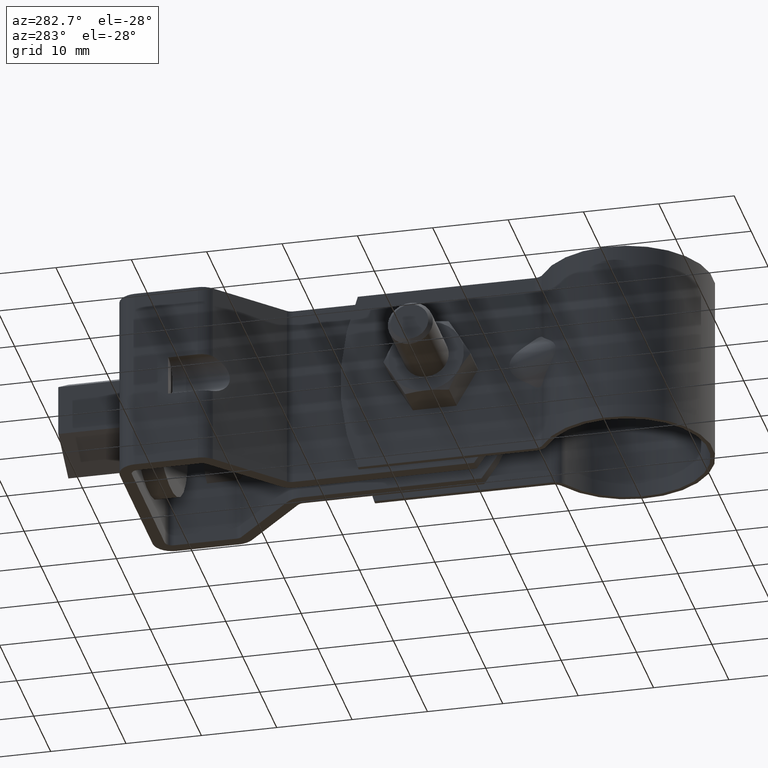
[diagram: clean part render]
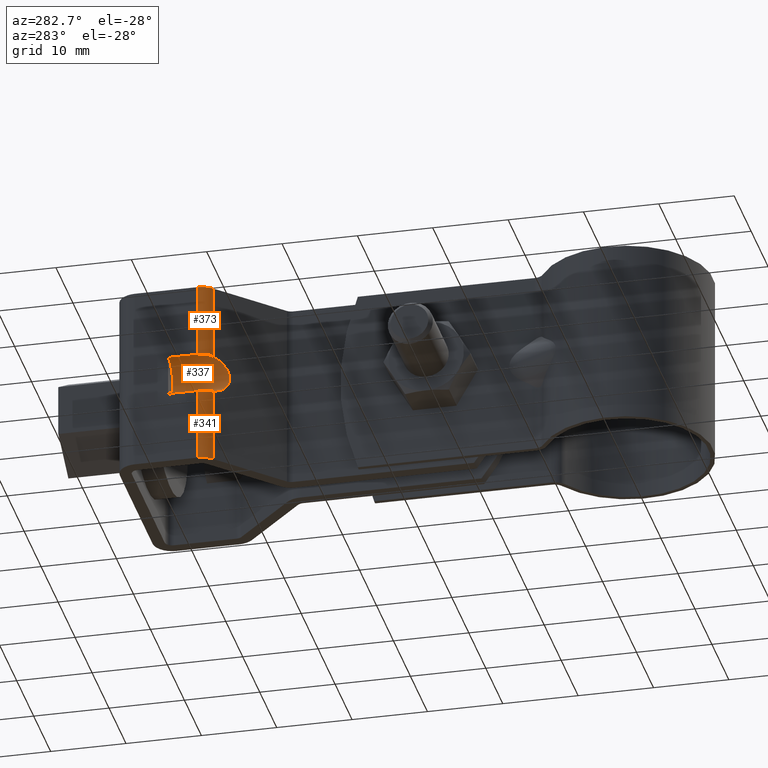
[diagram: same view with one multi-face feature highlighted, each face labeled with its STEP entity id]
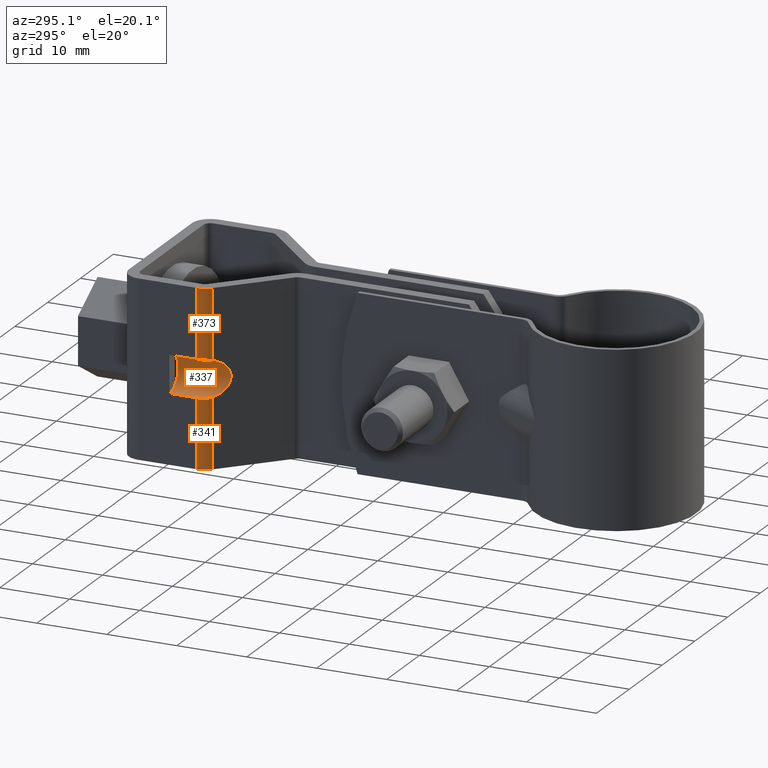
[diagram: same view with one multi-face feature highlighted, each face labeled with its STEP entity id]
A machine part, auxiliary view. The highlighted faces form ONE feature: a constant-radius fillet chain: 3 tangent blend faces with common blend radius 2.61667 mm. The faces share edges in the B-rep.
A second angle (auxiliary view) of the same feature is appended — it is thin or edge-on in the first view.
Their STEP definitions:
[1] entity #373 (Cylinder):
#373 = ADVANCED_FACE( '', ( #623 ), #624, .T. );
#623 = FACE_OUTER_BOUND( '', #895, .T. );
#624 = CYLINDRICAL_SURFACE( '', #896, 2.59999999999999 );
#895 = EDGE_LOOP( '', ( #1823, #1824, #1825, #1826 ) );
#896 = AXIS2_PLACEMENT_3D( '', #1827, #1828, #1829 );
#1823 = ORIENTED_EDGE( '', *, *, #2225, .T. );
#1824 = ORIENTED_EDGE( '', *, *, #2218, .T. );
#1825 = ORIENTED_EDGE( '', *, *, #2152, .F. );
#1826 = ORIENTED_EDGE( '', *, *, #2133, .T. );
#1827 = CARTESIAN_POINT( '', ( -9.64999999666659, 54.2186212063219, -12.4999987043417 ) );
#1828 = DIRECTION( '', ( -1.87698704392248E-011, 9.98350074832307E-009, -1.00000000000000 ) );
#1829 = DIRECTION( '', ( 1.39876277799465E-011, 1.00000000000000, 9.98350074832280E-009 ) );
#2133 = EDGE_CURVE( '', #2595, #2592, #2596, .T. );
#2152 = EDGE_CURVE( '', #2595, #2626, #2627, .T. );
#2218 = EDGE_CURVE( '', #2730, #2626, #2731, .T. );
#2225 = EDGE_CURVE( '', #2592, #2730, #2740, .T. );
#2592 = VERTEX_POINT( '', #3377 );
#2595 = VERTEX_POINT( '', #3380 );
#2596 = B_SPLINE_CURVE_WITH_KNOTS( '', 3, ( #3381, #3382, #3383, #3384, #3385, #3386, #3387, #3388, #3389, #3390 ), .UNSPECIFIED., .F., .F., ( 4, 2, 2, 2, 4 ), ( 0.000000000000000, 0.000517346174284563, 0.00103469234856913, 0.00155203852285369, 0.00206938469713825 ), .UNSPECIFIED. );
#2626 = VERTEX_POINT( '', #3447 );
#2627 = LINE( '', #3448, #3449 );
#2730 = VERTEX_POINT( '', #3619 );
#2731 = CIRCLE( '', #3620, 2.59999999999999 );
#2740 = LINE( '', #3633, #3634 );
#3377 = CARTESIAN_POINT( '', ( -11.4656419687898, 52.3575879485345, 2.53126232341100 ) );
#3380 = CARTESIAN_POINT( '', ( -12.2499999963822, 54.2186210551082, 2.65000129570708 ) );
#3381 = CARTESIAN_POINT( '', ( -12.2499999963822, 54.2186210551082, 2.65000129570708 ) );
#3382 = CARTESIAN_POINT( '', ( -12.2499999963846, 54.0437309908599, 2.65000129396107 ) );
#3383 = CARTESIAN_POINT( '', ( -12.2325330317953, 53.8717885829525, 2.65016498824892 ) );
#3384 = CARTESIAN_POINT( '', ( -12.1640563488394, 53.5335733929568, 2.64882865204402 ) );
#3385 = CARTESIAN_POINT( '', ( -12.1121297080972, 53.3654425446895, 2.64727724005148 ) );
#3386 = CARTESIAN_POINT( '', ( -11.9772119324837, 53.0464090895585, 2.63679192020757 ) );
#3387 = CARTESIAN_POINT( '', ( -11.8947254668622, 52.8953978702945, 2.62792906597273 ) );
#3388 = CARTESIAN_POINT( '', ( -11.7003962000549, 52.6106448608095, 2.59425648944388 ) );
#3389 = CARTESIAN_POINT( '', ( -11.5880224262662, 52.4769835109084, 2.56918417165766 ) );
#3390 = CARTESIAN_POINT( '', ( -11.4656419687898, 52.3575879485345, 2.53126232341100 ) );
#3447 = CARTESIAN_POINT( '', ( -12.2499999961973, 54.2186209567708, 12.5000012957071 ) );
#3448 = CARTESIAN_POINT( '', ( -12.2499999966666, 54.2186212063583, -12.4999987042929 ) );
#3449 = VECTOR( '', #4069, 1000.00000000000 );
#3619 = CARTESIAN_POINT( '', ( -11.4656419686027, 52.3575878490117, 12.5000012771128 ) );
#3620 = AXIS2_PLACEMENT_3D( '', #4171, #4172, #4173 );
#3633 = CARTESIAN_POINT( '', ( -11.4656419690719, 52.3575880985992, -12.4999987228872 ) );
#3634 = VECTOR( '', #4184, 1000.00000000000 );
#4069 = DIRECTION( '', ( 1.87698704392248E-011, -9.98350074832307E-009, 1.00000000000000 ) );
#4171 = CARTESIAN_POINT( '', ( -9.64999999619735, 54.2186209567344, 12.5000012956583 ) );
#4172 = DIRECTION( '', ( -1.87698704392238E-011, 9.98350074832307E-009, -1.00000000000000 ) );
#4173 = DIRECTION( '', ( -0.698323835540512, -0.715781964508738, -7.13290233039142E-009 ) );
#4184 = DIRECTION( '', ( 1.87698704392248E-011, -9.98350074832307E-009, 1.00000000000000 ) );
[2] entity #337 (Cylinder):
#337 = ADVANCED_FACE( '', ( #545 ), #546, .F. );
#545 = FACE_OUTER_BOUND( '', #817, .T. );
#546 = CYLINDRICAL_SURFACE( '', #818, 2.64999999999997 );
#817 = EDGE_LOOP( '', ( #1507, #1508, #1509, #1510, #1511, #1512, #1513, #1514 ) );
#818 = AXIS2_PLACEMENT_3D( '', #1515, #1516, #1517 );
#1507 = ORIENTED_EDGE( '', *, *, #2132, .F. );
#1508 = ORIENTED_EDGE( '', *, *, #2133, .F. );
#1509 = ORIENTED_EDGE( '', *, *, #2134, .T. );
#1510 = ORIENTED_EDGE( '', *, *, #2135, .T. );
#1511 = ORIENTED_EDGE( '', *, *, #2136, .T. );
#1512 = ORIENTED_EDGE( '', *, *, #2137, .T. );
#1513 = ORIENTED_EDGE( '', *, *, #2138, .F. );
#1514 = ORIENTED_EDGE( '', *, *, #2139, .F. );
#1515 = CARTESIAN_POINT( '', ( -12.2499999965172, 48.1228152824501, 1.23484962533116E-006 ) );
#1516 = DIRECTION( '', ( -1.39876277799465E-011, -1.00000000000000, -9.98350074832281E-009 ) );
#1517 = DIRECTION( '', ( -1.87488145554088E-011, 9.98350074832307E-009, -1.00000000000000 ) );
#2132 = EDGE_CURVE( '', #2592, #2593, #2594, .T. );
#2133 = EDGE_CURVE( '', #2595, #2592, #2596, .T. );
#2134 = EDGE_CURVE( '', #2595, #2597, #2598, .T. );
#2135 = EDGE_CURVE( '', #2597, #2599, #2600, .T. );
#2136 = EDGE_CURVE( '', #2599, #2601, #2602, .T. );
#2137 = EDGE_CURVE( '', #2601, #2603, #2604, .T. );
#2138 = EDGE_CURVE( '', #2605, #2603, #2606, .T. );
#2139 = EDGE_CURVE( '', #2593, #2605, #2607, .T. );
#2592 = VERTEX_POINT( '', #3377 );
#2593 = VERTEX_POINT( '', #3378 );
#2594 = ELLIPSE( '', #3379, 3.70224472166266, 2.64999999999997 );
#2595 = VERTEX_POINT( '', #3380 );
#2596 = B_SPLINE_CURVE_WITH_KNOTS( '', 3, ( #3381, #3382, #3383, #3384, #3385, #3386, #3387, #3388, #3389, #3390 ), .UNSPECIFIED., .F., .F., ( 4, 2, 2, 2, 4 ), ( 0.000000000000000, 0.000517346174284563, 0.00103469234856913, 0.00155203852285369, 0.00206938469713825 ), .UNSPECIFIED. );
#2597 = VERTEX_POINT( '', #3391 );
#2598 = LINE( '', #3392, #3393 );
#2599 = VERTEX_POINT( '', #3394 );
#2600 = CIRCLE( '', #3395, 2.64999999999997 );
#2601 = VERTEX_POINT( '', #3396 );
#2602 = CIRCLE( '', #3397, 2.64999999999997 );
#2603 = VERTEX_POINT( '', #3398 );
#2604 = CIRCLE( '', #3399, 2.64999999999997 );
#2605 = VERTEX_POINT( '', #3400 );
#2606 = LINE( '', #3401, #3402 );
#2607 = B_SPLINE_CURVE_WITH_KNOTS( '', 3, ( #3403, #3404, #3405, #3406, #3407, #3408, #3409, #3410 ), .UNSPECIFIED., .F., .F., ( 4, 2, 2, 4 ), ( 1.73472347597678E-018, 0.000516787748161299, 0.00103357549632260, 0.00206715099264519 ), .UNSPECIFIED. );
#3377 = CARTESIAN_POINT( '', ( -11.4656419687898, 52.3575879485345, 2.53126232341100 ) );
#3378 = CARTESIAN_POINT( '', ( -11.4656419688848, 52.3575879990762, -2.53125976918547 ) );
#3379 = AXIS2_PLACEMENT_3D( '', #4041, #4042, #4043 );
#3380 = CARTESIAN_POINT( '', ( -12.2499999963822, 54.2186210551082, 2.65000129570708 ) );
#3381 = CARTESIAN_POINT( '', ( -12.2499999963822, 54.2186210551082, 2.65000129570708 ) );
#3382 = CARTESIAN_POINT( '', ( -12.2499999963846, 54.0437309908599, 2.65000129396107 ) );
#3383 = CARTESIAN_POINT( '', ( -12.2325330317953, 53.8717885829525, 2.65016498824892 ) );
#3384 = CARTESIAN_POINT( '', ( -12.1640563488394, 53.5335733929568, 2.64882865204402 ) );
#3385 = CARTESIAN_POINT( '', ( -12.1121297080972, 53.3654425446895, 2.64727724005148 ) );
#3386 = CARTESIAN_POINT( '', ( -11.9772119324837, 53.0464090895585, 2.63679192020757 ) );
#3387 = CARTESIAN_POINT( '', ( -11.8947254668622, 52.8953978702945, 2.62792906597273 ) );
#3388 = CARTESIAN_POINT( '', ( -11.7003962000549, 52.6106448608095, 2.59425648944388 ) );
#3389 = CARTESIAN_POINT( '', ( -11.5880224262662, 52.4769835109084, 2.56918417165766 ) );
#3390 = CARTESIAN_POINT( '', ( -11.4656419687898, 52.3575879485345, 2.53126232341100 ) );
#3391 = CARTESIAN_POINT( '', ( -12.2499999963276, 58.1228152559938, 2.65000133468461 ) );
#3392 = CARTESIAN_POINT( '', ( -12.2499999964675, 48.1228152559938, 2.65000123484960 ) );
#3393 = VECTOR( '', #4044, 1000.00000000000 );
#3394 = CARTESIAN_POINT( '', ( -10.6499999963377, 58.1228152613380, 2.11246435208237 ) );
#3395 = AXIS2_PLACEMENT_3D( '', #4045, #4046, #4047 );
#3396 = CARTESIAN_POINT( '', ( -10.6499999964170, 58.1228153035175, -2.11246168277315 ) );
#3397 = AXIS2_PLACEMENT_3D( '', #4048, #4049, #4050 );
#3398 = CARTESIAN_POINT( '', ( -12.2499999964271, 58.1228153089064, -2.64999866531533 ) );
#3399 = AXIS2_PLACEMENT_3D( '', #4051, #4052, #4053 );
#3400 = CARTESIAN_POINT( '', ( -12.2499999964817, 54.2186211080207, -2.64999870429286 ) );
#3401 = CARTESIAN_POINT( '', ( -12.2499999965670, 48.1228153089064, -2.64999876515035 ) );
#3402 = VECTOR( '', #4054, 1000.00000000000 );
#3403 = CARTESIAN_POINT( '', ( -11.4656419688848, 52.3575879990762, -2.53125976918549 ) );
#3404 = CARTESIAN_POINT( '', ( -11.5880007559355, 52.4769624203282, -2.56917490006137 ) );
#3405 = CARTESIAN_POINT( '', ( -11.6979909690847, 52.6076613859442, -2.59373739019618 ) );
#3406 = CARTESIAN_POINT( '', ( -11.8919852965434, 52.8908560071498, -2.62754885565621 ) );
#3407 = CARTESIAN_POINT( '', ( -11.9765770422437, 53.0451812057756, -2.63672398389602 ) );
#3408 = CARTESIAN_POINT( '', ( -12.1789955990033, 53.5230141377761, -2.65250307058674 ) );
#3409 = CARTESIAN_POINT( '', ( -12.2499999964866, 53.8690792659735, -2.64999870778251 ) );
#3410 = CARTESIAN_POINT( '', ( -12.2499999964817, 54.2186211080207, -2.64999870429286 ) );
#4041 = CARTESIAN_POINT( '', ( -12.2499999964472, 53.1228152824503, 1.28476712601966E-006 ) );
#4042 = DIRECTION( '', ( 0.698323835540509, 0.715781964508740, 7.13290236549389E-009 ) );
#4043 = DIRECTION( '', ( -0.715781964508740, 0.698323835540509, 6.98515163344706E-009 ) );
#4044 = DIRECTION( '', ( 1.39876277799465E-011, 1.00000000000000, 9.98350074832280E-009 ) );
#4045 = CARTESIAN_POINT( '', ( -12.2499999963773, 58.1228152824501, 1.33468464058595E-006 ) );
#4046 = DIRECTION( '', ( 1.39876277799465E-011, 1.00000000000000, 9.98350074832280E-009 ) );
#4047 = DIRECTION( '', ( -1.87704167722794E-011, 9.98350074832306E-009, -1.00000000000000 ) );
#4048 = CARTESIAN_POINT( '', ( -12.2499999963773, 58.1228152824501, 1.33468464058595E-006 ) );
#4049 = DIRECTION( '', ( 1.39876277799465E-011, 1.00000000000000, 9.98350074832280E-009 ) );
#4050 = DIRECTION( '', ( -1.87704167722794E-011, 9.98350074832306E-009, -1.00000000000000 ) );
#4051 = CARTESIAN_POINT( '', ( -12.2499999963773, 58.1228152824501, 1.33468464058595E-006 ) );
#4052 = DIRECTION( '', ( 1.39876277799465E-011, 1.00000000000000, 9.98350074832280E-009 ) );
#4053 = DIRECTION( '', ( -1.87704167722794E-011, 9.98350074832306E-009, -1.00000000000000 ) );
#4054 = DIRECTION( '', ( 1.39876277799465E-011, 1.00000000000000, 9.98350074832280E-009 ) );
[3] entity #341 (Cylinder):
#341 = ADVANCED_FACE( '', ( #553 ), #554, .T. );
#553 = FACE_OUTER_BOUND( '', #825, .T. );
#554 = CYLINDRICAL_SURFACE( '', #826, 2.59999999999999 );
#825 = EDGE_LOOP( '', ( #1541, #1542, #1543, #1544 ) );
#826 = AXIS2_PLACEMENT_3D( '', #1545, #1546, #1547 );
#1541 = ORIENTED_EDGE( '', *, *, #2150, .F. );
#1542 = ORIENTED_EDGE( '', *, *, #2112, .F. );
#1543 = ORIENTED_EDGE( '', *, *, #2151, .T. );
#1544 = ORIENTED_EDGE( '', *, *, #2139, .T. );
#1545 = CARTESIAN_POINT( '', ( -9.64999999666659, 54.2186212063219, -12.4999987043417 ) );
#1546 = DIRECTION( '', ( -1.87698704392248E-011, 9.98350074832307E-009, -1.00000000000000 ) );
#1547 = DIRECTION( '', ( 1.39876277799465E-011, 1.00000000000000, 9.98350074832280E-009 ) );
#2112 = EDGE_CURVE( '', #2554, #2556, #2557, .T. );
#2139 = EDGE_CURVE( '', #2593, #2605, #2607, .T. );
#2150 = EDGE_CURVE( '', #2556, #2605, #2624, .T. );
#2151 = EDGE_CURVE( '', #2554, #2593, #2625, .T. );
#2554 = VERTEX_POINT( '', #3327 );
#2556 = VERTEX_POINT( '', #3330 );
#2557 = CIRCLE( '', #3331, 2.59999999999999 );
#2593 = VERTEX_POINT( '', #3378 );
#2605 = VERTEX_POINT( '', #3400 );
#2607 = B_SPLINE_CURVE_WITH_KNOTS( '', 3, ( #3403, #3404, #3405, #3406, #3407, #3408, #3409, #3410 ), .UNSPECIFIED., .F., .F., ( 4, 2, 2, 4 ), ( 1.73472347597678E-018, 0.000516787748161299, 0.00103357549632260, 0.00206715099264519 ), .UNSPECIFIED. );
#2624 = LINE( '', #3443, #3444 );
#2625 = LINE( '', #3445, #3446 );
#3327 = CARTESIAN_POINT( '', ( -11.4656419690719, 52.3575880985992, -12.4999987228872 ) );
#3330 = CARTESIAN_POINT( '', ( -12.2499999966666, 54.2186212063583, -12.4999987042929 ) );
#3331 = AXIS2_PLACEMENT_3D( '', #4003, #4004, #4005 );
#3378 = CARTESIAN_POINT( '', ( -11.4656419688848, 52.3575879990762, -2.53125976918547 ) );
#3400 = CARTESIAN_POINT( '', ( -12.2499999964817, 54.2186211080207, -2.64999870429286 ) );
#3403 = CARTESIAN_POINT( '', ( -11.4656419688848, 52.3575879990762, -2.53125976918549 ) );
#3404 = CARTESIAN_POINT( '', ( -11.5880007559355, 52.4769624203282, -2.56917490006137 ) );
#3405 = CARTESIAN_POINT( '', ( -11.6979909690847, 52.6076613859442, -2.59373739019618 ) );
#3406 = CARTESIAN_POINT( '', ( -11.8919852965434, 52.8908560071498, -2.62754885565621 ) );
#3407 = CARTESIAN_POINT( '', ( -11.9765770422437, 53.0451812057756, -2.63672398389602 ) );
#3408 = CARTESIAN_POINT( '', ( -12.1789955990033, 53.5230141377761, -2.65250307058674 ) );
#3409 = CARTESIAN_POINT( '', ( -12.2499999964866, 53.8690792659735, -2.64999870778251 ) );
#3410 = CARTESIAN_POINT( '', ( -12.2499999964817, 54.2186211080207, -2.64999870429286 ) );
#3443 = CARTESIAN_POINT( '', ( -12.2499999966666, 54.2186212063583, -12.4999987042929 ) );
#3444 = VECTOR( '', #4067, 1000.00000000000 );
#3445 = CARTESIAN_POINT( '', ( -11.4656419690719, 52.3575880985992, -12.4999987228872 ) );
#3446 = VECTOR( '', #4068, 1000.00000000000 );
#4003 = CARTESIAN_POINT( '', ( -9.64999999666659, 54.2186212063219, -12.4999987043417 ) );
#4004 = DIRECTION( '', ( -1.87698704392238E-011, 9.98350074832307E-009, -1.00000000000000 ) );
#4005 = DIRECTION( '', ( -0.698323835540512, -0.715781964508738, -7.13290233039142E-009 ) );
#4067 = DIRECTION( '', ( 1.87698704392248E-011, -9.98350074832307E-009, 1.00000000000000 ) );
#4068 = DIRECTION( '', ( 1.87698704392248E-011, -9.98350074832307E-009, 1.00000000000000 ) );